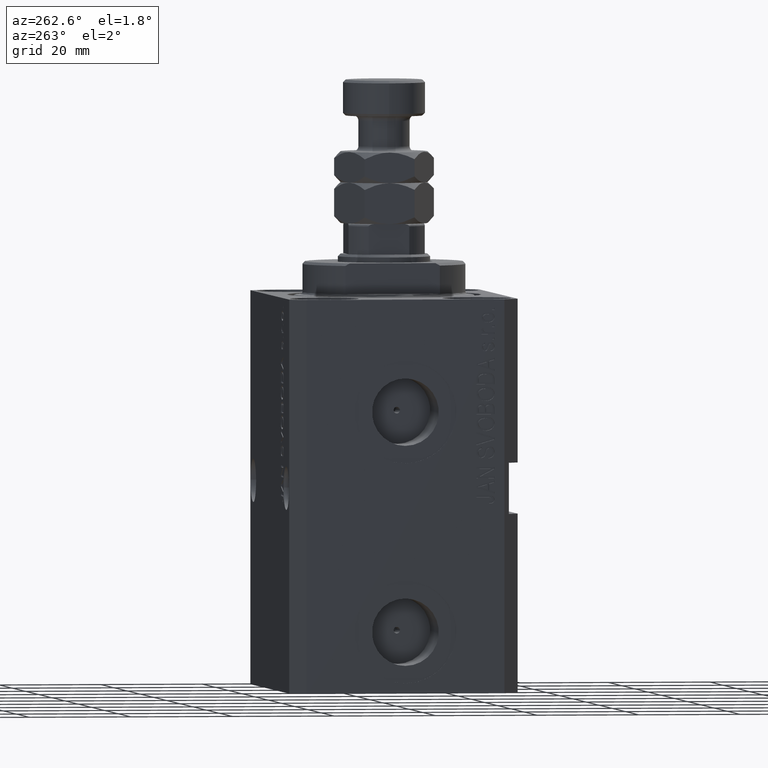
[diagram: clean part render]
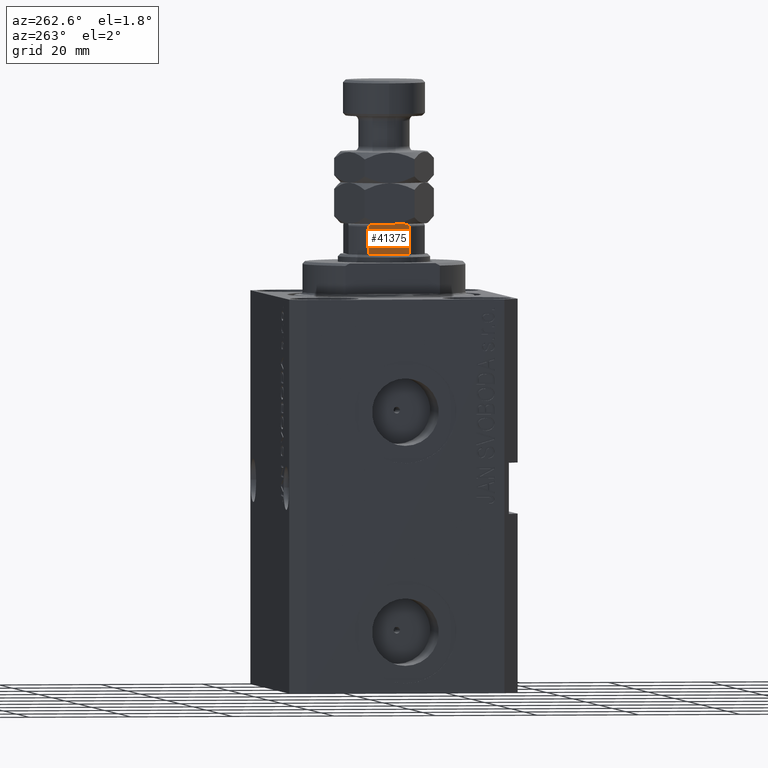
[diagram: same view with one face highlighted and labeled with its STEP entity id]
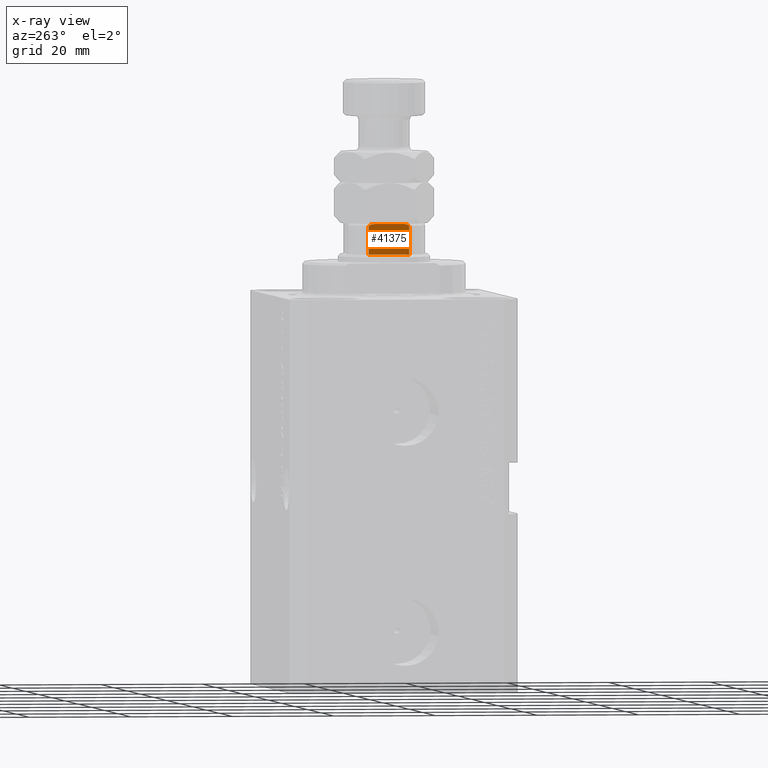
[diagram: x-ray of the same camera — body ghosted, the highlighted face saturated]
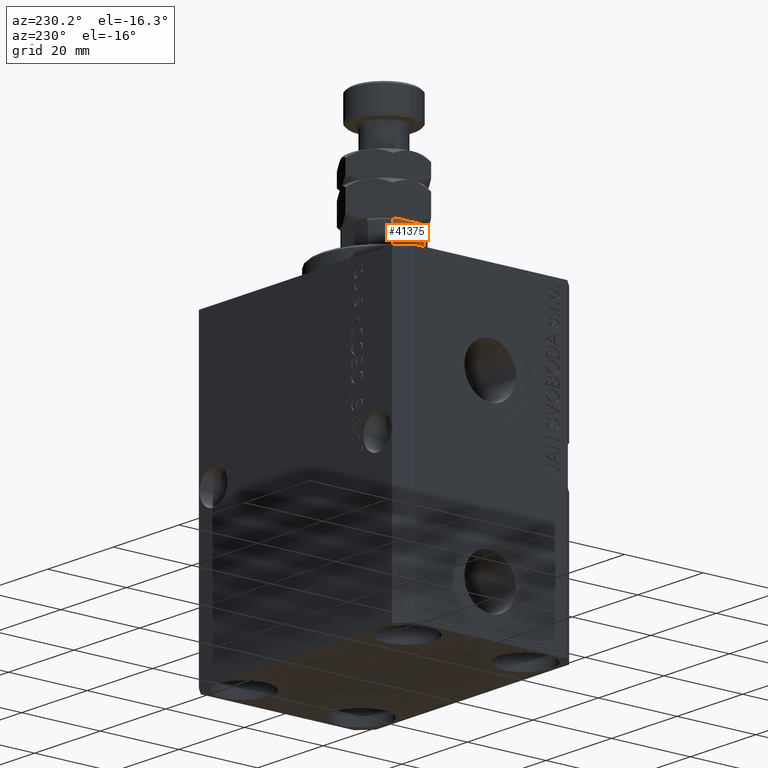
[diagram: same view with one face highlighted and labeled with its STEP entity id]
A machine part, auxiliary view. The second image highlights one B-rep face of the part: STEP entity #41375.
The next image is the same camera in x-ray: the body ghosted, the highlighted face saturated — about 0% of this face is hidden behind the body in this view.
A second angle (auxiliary view) of the same face is appended — the face is thin or edge-on in the first view.
In plain terms, the highlighted planar face has unit normal (1, 0, 0).
Its self-contained STEP definition (entity closure, byte-faithful):
#1717 = VERTEX_POINT ( 'NONE', #9251 ) ;
#2636 = CARTESIAN_POINT ( 'NONE',  ( -7.500000000000001776, 3.999999999999998224, 83.60000000000000853 ) ) ;
#2871 = CARTESIAN_POINT ( 'NONE',  ( -7.499999999999998224, 4.000000000000207834, 83.66034186205212109 ) ) ;
#3090 = CARTESIAN_POINT ( 'NONE',  ( -7.499999999999998224, 2.783882181415015644, 84.10000000000000853 ) ) ;
#4554 = DIRECTION ( 'NONE',  ( -5.782411586589357392E-17, 1.000000000000000000, 0.000000000000000000 ) ) ;
#5994 = B_SPLINE_CURVE_WITH_KNOTS ( 'NONE', 3,
 ( #3090, #23859, #14070, #20375, #30832, #41764, #41535, #45717, #2871, #2636 ),
 .UNSPECIFIED., .F., .F.,
 ( 4, 2, 2, 2, 4 ),
 ( 0.000000000000000000, 0.0007049202178654105470, 0.001057380326798120591, 0.001233610381264463578, 0.001409840435730805698 ),
 .UNSPECIFIED. ) ;
#6007 = LINE ( 'NONE', #37224, #39268 ) ;
#6026 = LINE ( 'NONE', #27012, #25264 ) ;
#6602 = VERTEX_POINT ( 'NONE', #22126 ) ;
#8460 = CARTESIAN_POINT ( 'NONE',  ( -7.500000000000001776, 3.999999999999998224, 83.60000000000000853 ) ) ;
#9251 = CARTESIAN_POINT ( 'NONE',  ( -7.500000000000002665, -3.999999999999996447, 78.10000000000005116 ) ) ;
#9498 = CARTESIAN_POINT ( 'NONE',  ( -7.499999999999997335, -3.597188386589931230, 83.99052843393239698 ) ) ;
#9637 = CARTESIAN_POINT ( 'NONE',  ( -7.499999999999998224, 7.499999999999999112, 78.10000000000000853 ) ) ;
#10441 = EDGE_LOOP ( 'NONE', ( #44167, #35048, #37526, #30884, #14942, #40130 ) ) ;
#11444 = VERTEX_POINT ( 'NONE', #20552 ) ;
#12080 = CARTESIAN_POINT ( 'NONE',  ( -7.499999999999998224, -3.020011215871901022, 84.10000000000000853 ) ) ;
#12137 = VERTEX_POINT ( 'NONE', #8460 ) ;
#12986 = B_SPLINE_CURVE_WITH_KNOTS ( 'NONE', 3,
 ( #44657, #43968, #23496, #15817, #19781, #26528, #9498, #34173, #12080, #37668 ),
 .UNSPECIFIED., .F., .F.,
 ( 4, 2, 2, 2, 4 ),
 ( 0.000000000000000000, 0.0001779688448868745748, 0.0003559376897737483365, 0.0007118753795475175981, 0.001423750759095054712 ),
 .UNSPECIFIED. ) ;
#13027 = DIRECTION ( 'NONE',  ( 5.782411586589357392E-17, -1.000000000000000000, 0.000000000000000000 ) ) ;
#14070 = CARTESIAN_POINT ( 'NONE',  ( -7.499999999999998224, 3.255843148148210631, 84.08262378726873010 ) ) ;
#14127 = EDGE_CURVE ( 'NONE', #6602, #21552, #12986, .T. ) ;
#14942 = ORIENTED_EDGE ( 'NONE', *, *, #39894, .F. ) ;
#15817 = CARTESIAN_POINT ( 'NONE',  ( -7.499999999999998224, -3.904208668232361124, 83.81278134537498659 ) ) ;
#17869 = AXIS2_PLACEMENT_3D ( 'NONE', #28634, #45850, #4554 ) ;
#19571 = EDGE_CURVE ( 'NONE', #11444, #12137, #5994, .T. ) ;
#19781 = CARTESIAN_POINT ( 'NONE',  ( -7.499999999999997335, -3.858352854028600731, 83.85117951603156428 ) ) ;
#20023 = DIRECTION ( 'NONE',  ( -0.000000000000000000, -0.000000000000000000, 1.000000000000000000 ) ) ;
#20375 = CARTESIAN_POINT ( 'NONE',  ( -7.499999999999997335, 3.598393151503783471, 83.99012191927414506 ) ) ;
#20552 = CARTESIAN_POINT ( 'NONE',  ( -7.499999999999998224, 2.783882181415015644, 84.10000000000000853 ) ) ;
#21552 = VERTEX_POINT ( 'NONE', #42320 ) ;
#22126 = CARTESIAN_POINT ( 'NONE',  ( -7.500000000000002665, -3.999999999999996447, 83.60000000000000853 ) ) ;
#22284 = VECTOR ( 'NONE', #29925, 1000.000000000000000 ) ;
#22304 = VECTOR ( 'NONE', #39089, 1000.000000000000000 ) ;
#22409 = CARTESIAN_POINT ( 'NONE',  ( -7.500000000000001776, 4.000000000000000000, 78.10000000000005116 ) ) ;
#23496 = CARTESIAN_POINT ( 'NONE',  ( -7.499999999999998224, -3.976018255615934915, 83.71726199300995575 ) ) ;
#23859 = CARTESIAN_POINT ( 'NONE',  ( -7.499999999999996447, 3.020030562295406451, 84.10000000000000853 ) ) ;
#24672 = CARTESIAN_POINT ( 'NONE',  ( -7.500000000000001776, 3.999999999999998224, -0.001000000000001000089 ) ) ;
#25264 = VECTOR ( 'NONE', #13027, 1000.000000000000000 ) ;
#26528 = CARTESIAN_POINT ( 'NONE',  ( -7.499999999999997335, -3.708875323752959918, 83.94930352055463629 ) ) ;
#27012 = CARTESIAN_POINT ( 'NONE',  ( -7.499999999999998224, 7.499999999999999112, 84.10000000000000853 ) ) ;
#28634 = CARTESIAN_POINT ( 'NONE',  ( -7.499999999999998224, 7.499999999999999112, 84.10000000000000853 ) ) ;
#29925 = DIRECTION ( 'NONE',  ( 5.782411586589357392E-17, -1.000000000000000000, 0.000000000000000000 ) ) ;
#30832 = CARTESIAN_POINT ( 'NONE',  ( -7.499999999999998224, 3.710689790367156959, 83.94812118173427962 ) ) ;
#30884 = ORIENTED_EDGE ( 'NONE', *, *, #19571, .T. ) ;
#31654 = FACE_OUTER_BOUND ( 'NONE', #10441, .T. ) ;
#31977 = EDGE_CURVE ( 'NONE', #1717, #6602, #6007, .T. ) ;
#34173 = CARTESIAN_POINT ( 'NONE',  ( -7.499999999999997335, -3.254991323038182838, 84.08269028443156401 ) ) ;
#35048 = ORIENTED_EDGE ( 'NONE', *, *, #14127, .T. ) ;
#35603 = LINE ( 'NONE', #24672, #22304 ) ;
#35850 = EDGE_CURVE ( 'NONE', #41875, #1717, #44108, .T. ) ;
#37224 = CARTESIAN_POINT ( 'NONE',  ( -7.500000000000002665, -3.999999999999996447, -0.001000000000001000089 ) ) ;
#37526 = ORIENTED_EDGE ( 'NONE', *, *, #38920, .F. ) ;
#37668 = CARTESIAN_POINT ( 'NONE',  ( -7.499999999999998224, -2.783882181415016088, 84.10000000000000853 ) ) ;
#38920 = EDGE_CURVE ( 'NONE', #11444, #21552, #6026, .T. ) ;
#39089 = DIRECTION ( 'NONE',  ( -0.000000000000000000, -0.000000000000000000, 1.000000000000000000 ) ) ;
#39268 = VECTOR ( 'NONE', #20023, 1000.000000000000000 ) ;
#39894 = EDGE_CURVE ( 'NONE', #41875, #12137, #35603, .T. ) ;
#40130 = ORIENTED_EDGE ( 'NONE', *, *, #35850, .T. ) ;
#41375 = ADVANCED_FACE ( 'NONE', ( #31654 ), #42582, .F. ) ;
#41535 = CARTESIAN_POINT ( 'NONE',  ( -7.499999999999998224, 3.904072061442346087, 83.81287056890806753 ) ) ;
#41764 = CARTESIAN_POINT ( 'NONE',  ( -7.499999999999999112, 3.857502111569848235, 83.85173359969212470 ) ) ;
#41875 = VERTEX_POINT ( 'NONE', #22409 ) ;
#42320 = CARTESIAN_POINT ( 'NONE',  ( -7.499999999999998224, -2.783882181415016088, 84.10000000000000853 ) ) ;
#42582 = PLANE ( 'NONE',  #17869 ) ;
#43968 = CARTESIAN_POINT ( 'NONE',  ( -7.500000000000004441, -3.999999999999996447, 83.66026396800434384 ) ) ;
#44108 = LINE ( 'NONE', #9637, #22284 ) ;
#44167 = ORIENTED_EDGE ( 'NONE', *, *, #31977, .T. ) ;
#44657 = CARTESIAN_POINT ( 'NONE',  ( -7.500000000000002665, -3.999999999999996447, 83.60000000000000853 ) ) ;
#45717 = CARTESIAN_POINT ( 'NONE',  ( -7.499999999999998224, 3.975735230428945055, 83.71773041319778486 ) ) ;
#45850 = DIRECTION ( 'NONE',  ( 1.000000000000000000, 5.782411586589357392E-17, -0.000000000000000000 ) ) ;